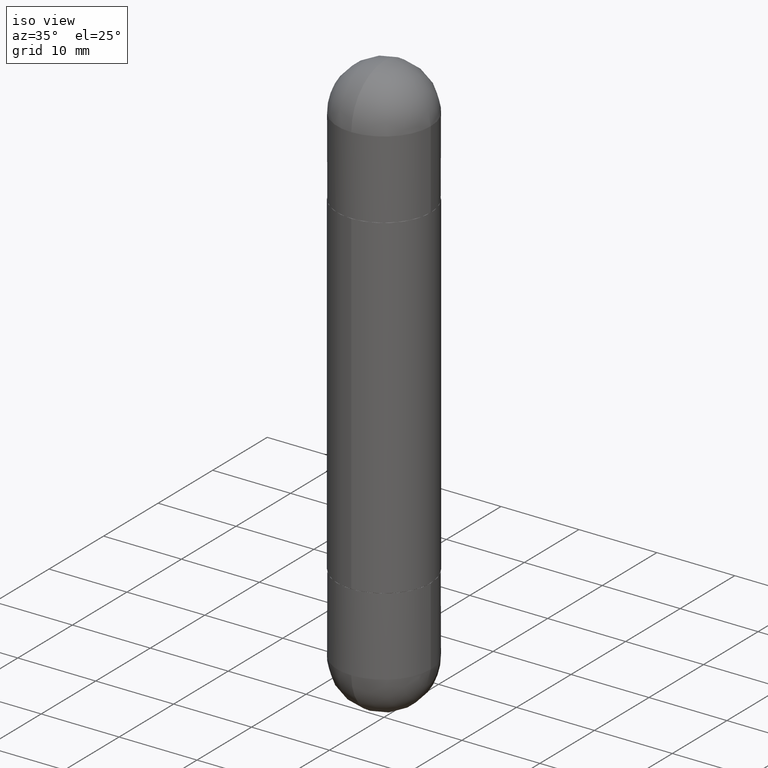
[diagram: clean part render]
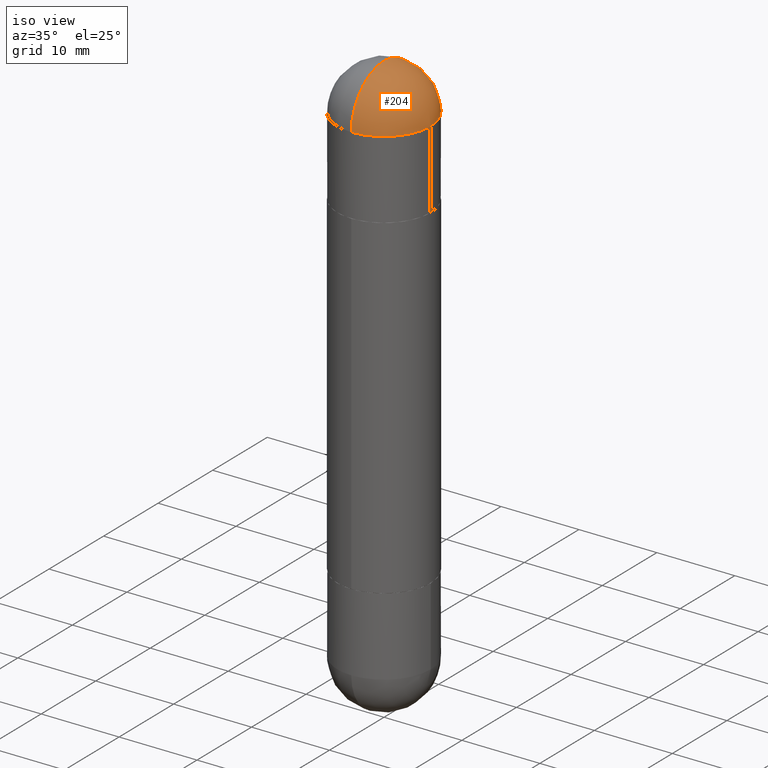
[diagram: same view with one face highlighted and labeled with its STEP entity id]
A machine part, iso view. The second image highlights one B-rep face of the part: STEP entity #204.
In plain terms, the highlighted spherical surface has radius 5.9995 mm.
Its self-contained STEP definition (entity closure, byte-faithful):
#8 = DIRECTION ( 'NONE',  ( -1.000000000000000000, 6.982962677686265922E-15, 4.883557194083112340E-29 ) ) ;
#18 = DIRECTION ( 'NONE',  ( -6.982962677686265922E-15, -1.000000000000000000, 0.000000000000000000 ) ) ;
#26 = EDGE_CURVE ( 'NONE', #502, #424, #187, .T. ) ;
#49 = VERTEX_POINT ( 'NONE', #136 ) ;
#50 = CARTESIAN_POINT ( 'NONE',  ( 6.312240780968655053E-29, -9.959140573241337406E-15, -0.2362000000000000766 ) ) ;
#97 = SPHERICAL_SURFACE ( 'NONE', #492, 0.2362000000000002709 ) ;
#101 = ORIENTED_EDGE ( 'NONE', *, *, #398, .T. ) ;
#108 = AXIS2_PLACEMENT_3D ( 'NONE', #50, #482, #740 ) ;
#136 = CARTESIAN_POINT ( 'NONE',  ( 0.2361999999999999933, -1.044703588801951204E-14, -0.2362000000000006039 ) ) ;
#138 = DIRECTION ( 'NONE',  ( 1.000000000000000000, -6.982962677686265133E-15, 0.000000000000000000 ) ) ;
#158 = DIRECTION ( 'NONE',  ( 1.000000000000000000, -6.982962677686265922E-15, -4.883557194083112901E-29 ) ) ;
#187 = CIRCLE ( 'NONE', #320, 0.2362000000000002709 ) ;
#204 = ADVANCED_FACE ( 'NONE', ( #341 ), #97, .T. ) ;
#292 = CIRCLE ( 'NONE', #761, 0.2361999999999999933 ) ;
#301 = EDGE_LOOP ( 'NONE', ( #715, #683, #400, #101 ) ) ;
#320 = AXIS2_PLACEMENT_3D ( 'NONE', #386, #8, #18 ) ;
#322 = CIRCLE ( 'NONE', #108, 0.2362000000000002709 ) ;
#332 = CARTESIAN_POINT ( 'NONE',  ( 6.643360558882540179E-29, -9.484958205101285532E-15, -0.2362000000000006039 ) ) ;
#341 = FACE_OUTER_BOUND ( 'NONE', #301, .T. ) ;
#384 = DIRECTION ( 'NONE',  ( 2.445468806185136597E-29, -3.491481338843145583E-15, 1.000000000000000000 ) ) ;
#386 = CARTESIAN_POINT ( 'NONE',  ( 6.312240780968655053E-29, -9.959140573241337406E-15, -0.2362000000000000766 ) ) ;
#398 = EDGE_CURVE ( 'NONE', #49, #424, #292, .T. ) ;
#400 = ORIENTED_EDGE ( 'NONE', *, *, #445, .T. ) ;
#424 = VERTEX_POINT ( 'NONE', #802 ) ;
#428 = DIRECTION ( 'NONE',  ( 2.445468806185136597E-29, -3.491481338843145583E-15, 1.000000000000000000 ) ) ;
#441 = AXIS2_PLACEMENT_3D ( 'NONE', #332, #384, #138 ) ;
#445 = EDGE_CURVE ( 'NONE', #582, #49, #506, .T. ) ;
#482 = DIRECTION ( 'NONE',  ( 1.000000000000000000, -6.860497997771530774E-15, -4.840798879624142912E-29 ) ) ;
#483 = DIRECTION ( 'NONE',  ( 1.000000000000000000, -6.982962677686265133E-15, 0.000000000000000000 ) ) ;
#492 = AXIS2_PLACEMENT_3D ( 'NONE', #733, #158, #537 ) ;
#502 = VERTEX_POINT ( 'NONE', #510 ) ;
#506 = CIRCLE ( 'NONE', #441, 0.2361999999999999933 ) ;
#510 = CARTESIAN_POINT ( 'NONE',  ( 6.899960026864792464E-29, -1.076936538677815810E-14, 2.048885995248197414E-16 ) ) ;
#537 = DIRECTION ( 'NONE',  ( 6.982962677686265922E-15, 1.000000000000000000, 3.469747663417773058E-15 ) ) ;
#582 = VERTEX_POINT ( 'NONE', #714 ) ;
#683 = ORIENTED_EDGE ( 'NONE', *, *, #793, .T. ) ;
#714 = CARTESIAN_POINT ( 'NONE',  ( -1.620449627073571772E-15, -0.2362000000000098743, -0.2362000000000014366 ) ) ;
#715 = ORIENTED_EDGE ( 'NONE', *, *, #26, .F. ) ;
#733 = CARTESIAN_POINT ( 'NONE',  ( 6.312240780968655053E-29, -9.959140573241337406E-15, -0.2362000000000000766 ) ) ;
#740 = DIRECTION ( 'NONE',  ( 6.860497997771530774E-15, 1.000000000000000000, 0.000000000000000000 ) ) ;
#758 = CARTESIAN_POINT ( 'NONE',  ( 6.643360558882540179E-29, -9.484958205101285532E-15, -0.2362000000000006039 ) ) ;
#761 = AXIS2_PLACEMENT_3D ( 'NONE', #758, #428, #483 ) ;
#793 = EDGE_CURVE ( 'NONE', #502, #582, #322, .T. ) ;
#802 = CARTESIAN_POINT ( 'NONE',  ( 1.649375784469561606E-15, 0.2361999999999903899, -0.2361999999999997990 ) ) ;